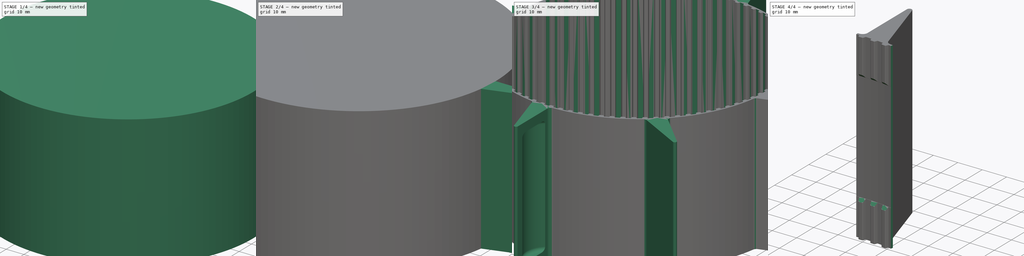
[diagram: build sequence overview — one tinted view per stage of 4, left to right]
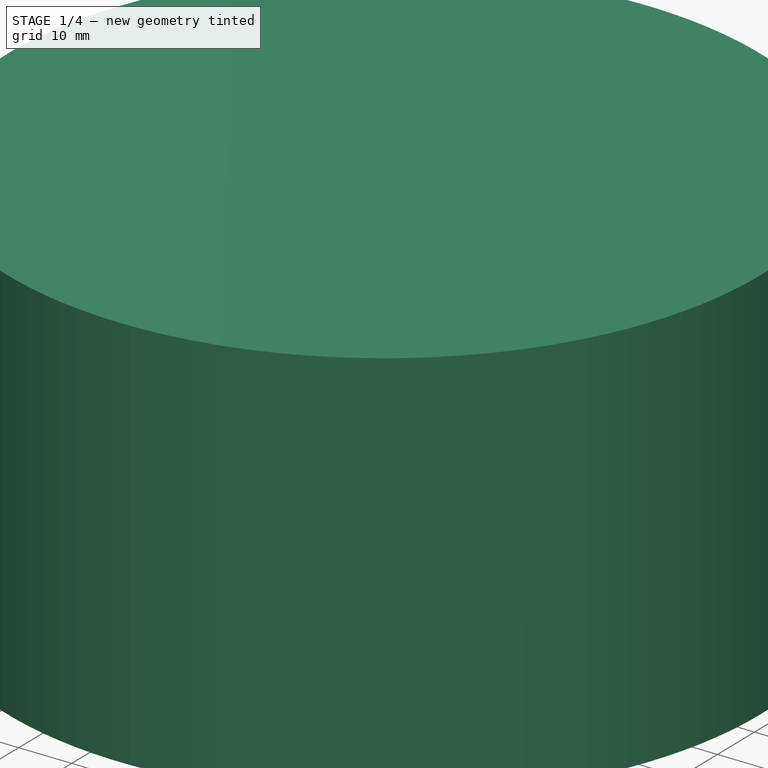
[diagram: stage 1 of 4 — iso view after this stage's code; geometry added in this stage tinted green]
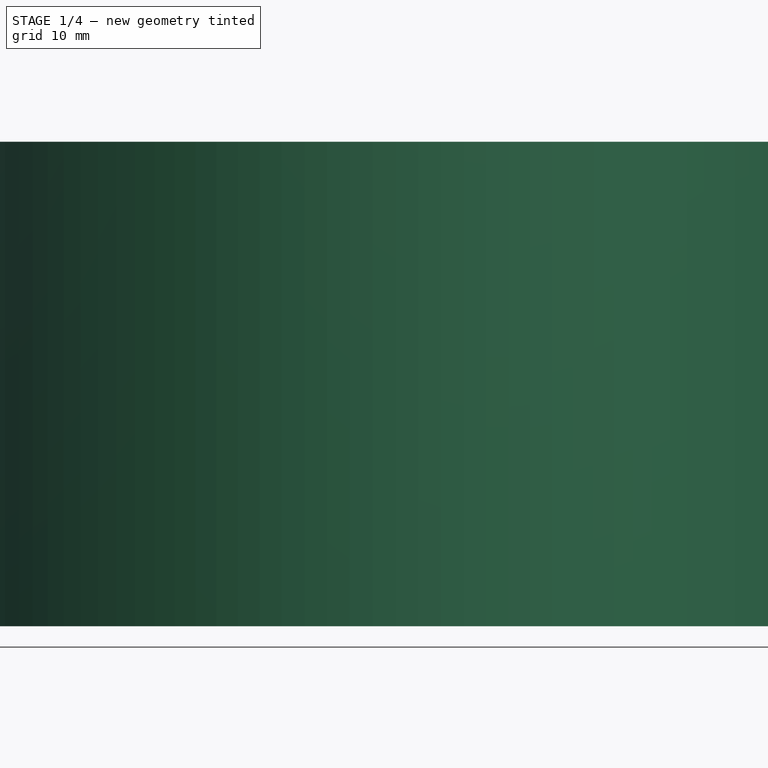
[diagram: stage 1 of 4 — front view after this stage's code; geometry added in this stage tinted green]
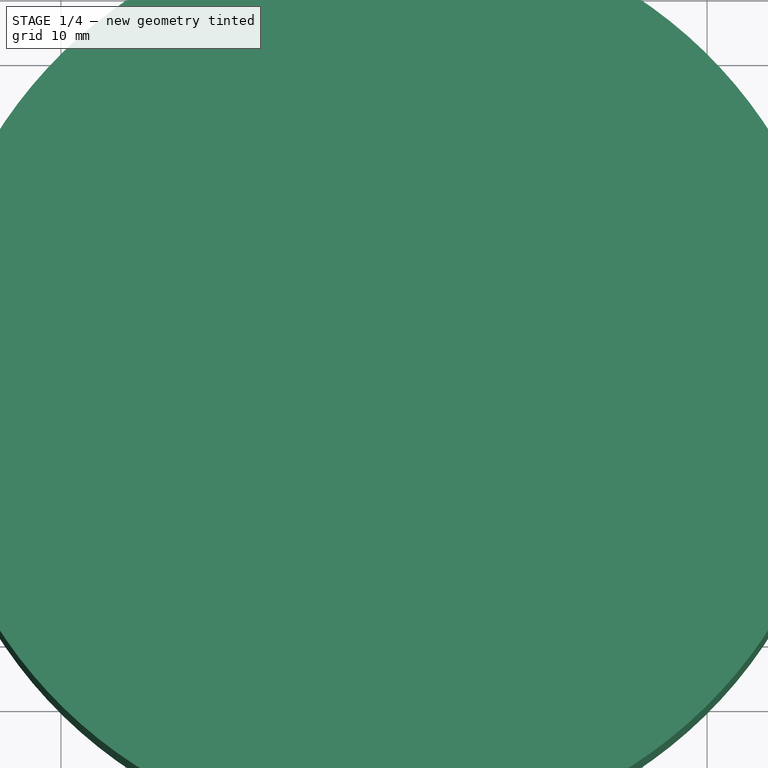
[diagram: stage 1 of 4 — top view after this stage's code; geometry added in this stage tinted green]
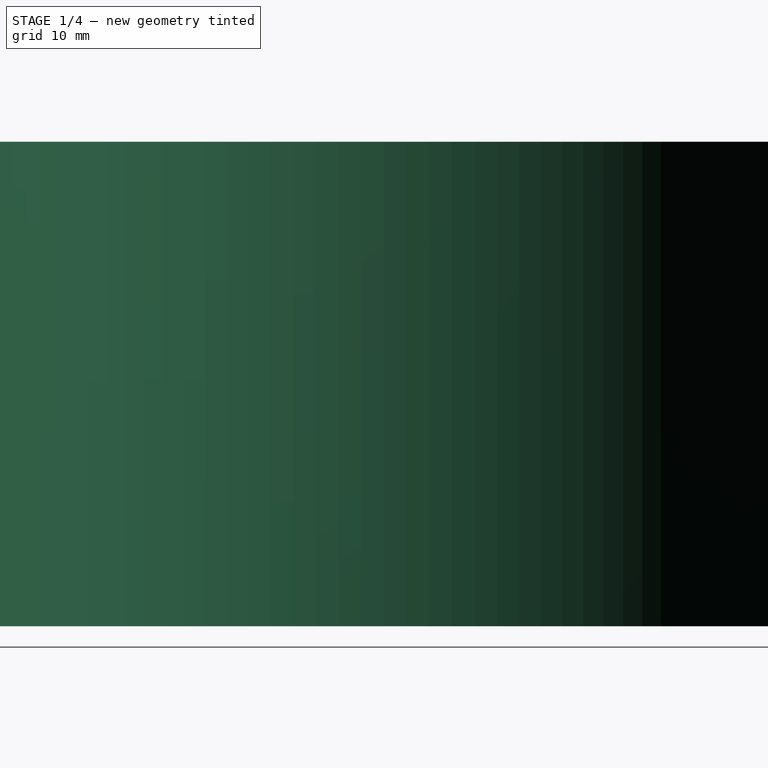
[diagram: stage 1 of 4 — right view after this stage's code; geometry added in this stage tinted green]
FCSTD DOCUMENT  (FreeCAD 2023.131R26244 +5365 (Git))
Label: ball-elevator
License: Creative Commons Attribution-NoDerivatives
LicenseURL: http://creativecommons.org/licenses/by-nd/4.0/
objects: Sketcher::SketchObject×8, PartDesign::Body×4, PartDesign::Pad×3, PartDesign::Pocket×3, PartDesign::Fillet×3, PartDesign::PolarPattern×2, App::DocumentObjectGroup×1, PartDesign::SubShapeBinder×1, PartDesign::Boolean×1, PartDesign::Groove×1, PartDesign::FeatureBase×1
note: 61 computed .brp shape members not serialized (recipe doc carries the construction recipe); baked Part::Feature solids carry a one-line shape summary decoded from their .brp

FEATURE [Sketcher::SketchObject] Sketch
  ArcFitTolerance = 1e-06
  AttachmentSupport = -> [XY_Plane]
  ExternalBSplineMaxDegree = 5
  ExternalBSplineTolerance = 0.0001
  FullyConstrained = true
  InternalTolerance = 1e-06
  InvalidShape = false
  MakeInternals = true
  MapMode = 5
  Support = -> [XY_Plane]
  TreeRank = 11
  ValidateShape = true
  sketch-geometry (6):
    g0: Circle [constr] CenterX=-3.18715e-11 CenterY=1.15965e-11 CenterZ=0 NormalX=0 NormalY=0 NormalZ=1 AngleXU=0 Radius=20.3
    g1: Circle [constr] CenterX=3.15927e-11 CenterY=150 CenterZ=0 NormalX=0 NormalY=0 NormalZ=1 AngleXU=0 Radius=20.3
    g2: LineSegment StartX=-20.3 StartY=1.3805e-06 StartZ=0 EndX=-20.3 EndY=150 EndZ=0
    g3: LineSegment StartX=20.3 StartY=150 StartZ=0 EndX=20.3 EndY=-5.31998e-10 EndZ=0
    g4: ArcOfCircle CenterX=3.15927e-11 CenterY=150 CenterZ=0 NormalX=0 NormalY=0 NormalZ=1 AngleXU=0 Radius=20.3 StartAngle=-9.96e-12 EndAngle=3.14159
    g5: ArcOfCircle CenterX=-3.18715e-11 CenterY=1.15965e-11 CenterZ=0 NormalX=0 NormalY=0 NormalZ=1 AngleXU=0 Radius=20.3 StartAngle=3.14159 EndAngle=6.28319
  constraints (14):
    c: Coincident(g0,g-1)
    c: PointOnObject(g1,g-2)
    c: Equal(g1,g0)
    c: Diameter(g1) = 40.6
    c: PointOnObject(g2,g0)
    c: PointOnObject(g2,g1)
    c: Vertical(g2)
    c: Coincident(g4,g1)
    c: Coincident(g5,g0)
    c: Coincident(g5,g2)
    c: Tangent(g5,g3) = 1.5708
    c: Tangent(g4,g3) = 1.5708
    c: Tangent(g4,g2) = 1.5708
    c: DistanceY(g5,g4) = 150
FEATURE [PartDesign::Body] Body
  AutoGroupSolids = false
  ClaimAllChildren = false
  ExportMode = 0
  Group = -> [Sketch]
  InvalidShape = false
  Origin = -> Origin
  SingleSolid = true
  TreeRank = 10
  ValidateShape = true
  _ExportChildren = -> [Sketch]
  _GroupVersion = 1
FEATURE [Sketcher::SketchObject] Sketch002
  ArcFitTolerance = 1e-06
  AttachmentSupport = -> [XY_Plane002]
  ExternalBSplineMaxDegree = 5
  ExternalBSplineTolerance = 0.0001
  FullyConstrained = true
  InternalTolerance = 1e-06
  InvalidShape = false
  MakeInternals = true
  MapMode = 5
  Support = -> [XY_Plane002]
  TreeRank = 40
  ValidateShape = true
  sketch-geometry (2):
    g0: Circle [constr] CenterX=0 CenterY=0 CenterZ=0 NormalX=0 NormalY=0 NormalZ=1 AngleXU=0 Radius=70
    g1: Circle CenterX=0 CenterY=0 CenterZ=0 NormalX=0 NormalY=0 NormalZ=1 AngleXU=0 Radius=71
  constraints (4):
    c: Coincident(g0,g-1)
    c: Diameter(g0) = 140
    c: Coincident(g1,g0)
    c: Diameter(g1) = 142
FEATURE [PartDesign::Pad] Pad
  AddSubType = 0
  AlongSketchNormal = false
  AutoTaperInnerAngle = true
  CheckUpToFaceLimits = true
  ClaimChildren = false
  Direction = (0,0,1)
  Fit = 0
  FitJoin = 0
  InnerFit = 0
  InnerFitJoin = 0
  InvalidShape = false
  Length = 75
  Length2 = 100
  Linearize = true
  Midplane = true
  NewSolid = false
  Profile = -> Sketch002
  Refine = true
  Suppress = false
  TaperInnerAngle = 0
  TaperInnerAngleRev = 0
  TreeRank = 41
  Type = 0
  ValidateShape = true
  _ProfileBasedVersion = 1
FEATURE [Sketcher::SketchObject] Sketch007
  ArcFitTolerance = 1e-06
  AttachmentSupport = -> [XY_Plane003]
  ExternalBSplineMaxDegree = 5
  ExternalBSplineTolerance = 0.0001
  FullyConstrained = true
  InternalTolerance = 1e-06
  InvalidShape = false
  MakeInternals = true
  MapMode = 5
  Support = -> [XY_Plane003]
  TreeRank = 64
  ValidateShape = true
  sketch-geometry (5):
    g0: ArcOfCircle CenterX=-6.1e-14 CenterY=-5.748e-12 CenterZ=0 NormalX=0 NormalY=0 NormalZ=1 AngleXU=0 Radius=70.06 StartAngle=1.55178 EndAngle=1.58981
    g1: LineSegment StartX=-1.33215 StartY=70.0473 StartZ=0 EndX=-0.9 EndY=68.86 EndZ=0
    g2: LineSegment StartX=-0.9 StartY=68.86 StartZ=0 EndX=0.9 EndY=68.86 EndZ=0
    g3: LineSegment StartX=0.9 StartY=68.86 StartZ=0 EndX=1.33215 EndY=70.0473 EndZ=0
    g4: GeomPoint [constr] X=0 Y=70.06 Z=0
  constraints (13):
    c: Coincident(g0,g-1)
    c: Symmetric(g0,g0,g-2)
    c: Coincident(g1,g0)
    c: Coincident(g2,g1)
    c: Coincident(g3,g2)
    c: Coincident(g3,g0)
    c: Angle(g3,g1) = 0.698132
    c: Symmetric(g1,g2,g-2)
    c: DistanceX(g2,g2) = 1.8
    c: PointOnObject(g4,g0)
    c: PointOnObject(g4,g-2)
    c: DistanceY(g2,g4) = 1.2
    c: Diameter(g0) = 140.12
FEATURE [PartDesign::Pad] Pad002
  AddSubType = 0
  AlongSketchNormal = false
  AutoTaperInnerAngle = true
  CheckUpToFaceLimits = true
  ClaimChildren = false
  Direction = (0,0,1)
  Fit = 0
  FitJoin = 0
  InnerFit = 0
  InnerFitJoin = 0
  InvalidShape = false
  Length = 75
  Length2 = 100
  Linearize = true
  Midplane = true
  NewSolid = false
  Profile = -> Sketch007
  Refine = true
  Suppress = false
  TaperInnerAngle = 0
  TaperInnerAngleRev = 0
  TreeRank = 65
  Type = 0
  ValidateShape = true
  _ProfileBasedVersion = 1
FEATURE [PartDesign::Fillet] Fillet002
  AddSubType = 0
  Base = -> Pad002 [Edge8,Edge5]
  BaseFeature = -> Pad002
  InvalidShape = false
  NewSolid = false
  Radius = 0.4
  Refine = true
  SupportTransform = false
  Suppress = false
  TreeRank = 66
  ValidateShape = true
FEATURE [PartDesign::PolarPattern] PolarPattern001
  AddSubType = 0
  Angle = 360
  Axis = -> Sketch007 [N_Axis]
  BaseFeature = -> Fillet002
  CopyShape = false
  InvalidShape = false
  NewSolid = false
  Occurrences = 88
  OriginalSubs = -> [Pad002,Fillet002]
  Originals = -> [Pad002,Fillet002]
  ParallelTransform = true
  Refine = true
  SubTransform = true
  Suppress = false
  TreeRank = 67
  ValidateShape = true
  _Version = 3
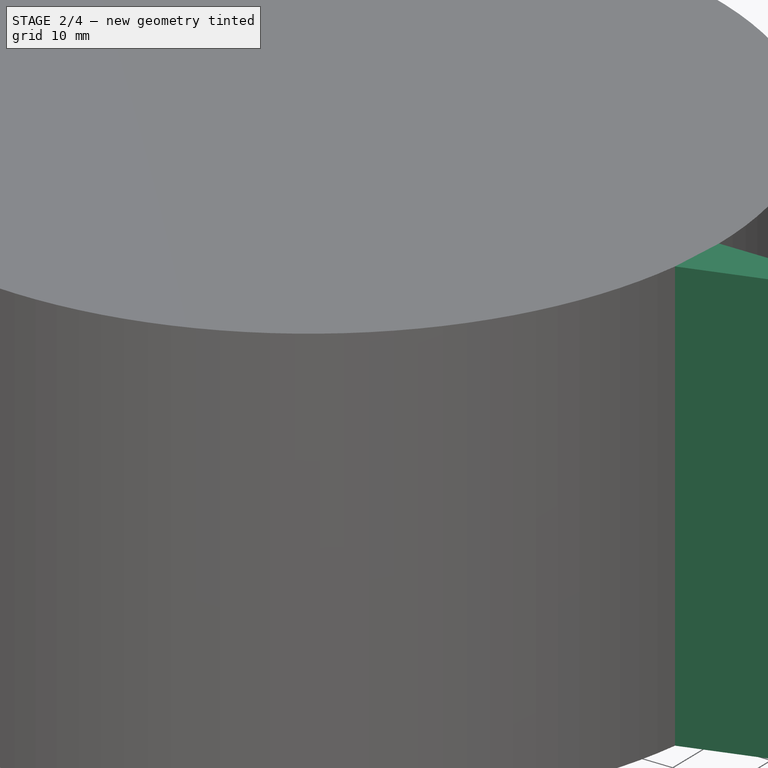
[diagram: stage 2 of 4 — iso view after this stage's code; geometry added in this stage tinted green]
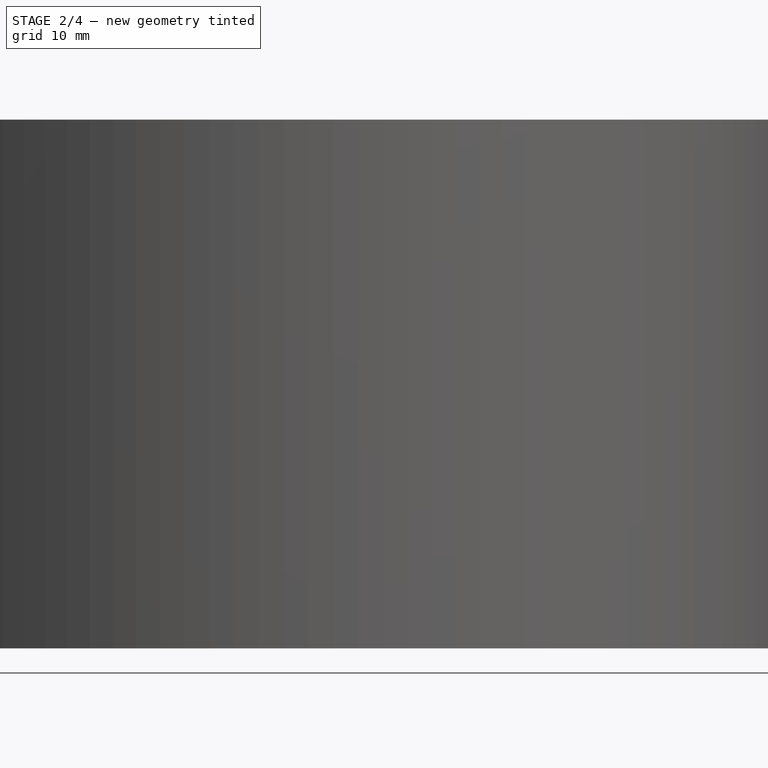
[diagram: stage 2 of 4 — front view after this stage's code; geometry added in this stage tinted green]
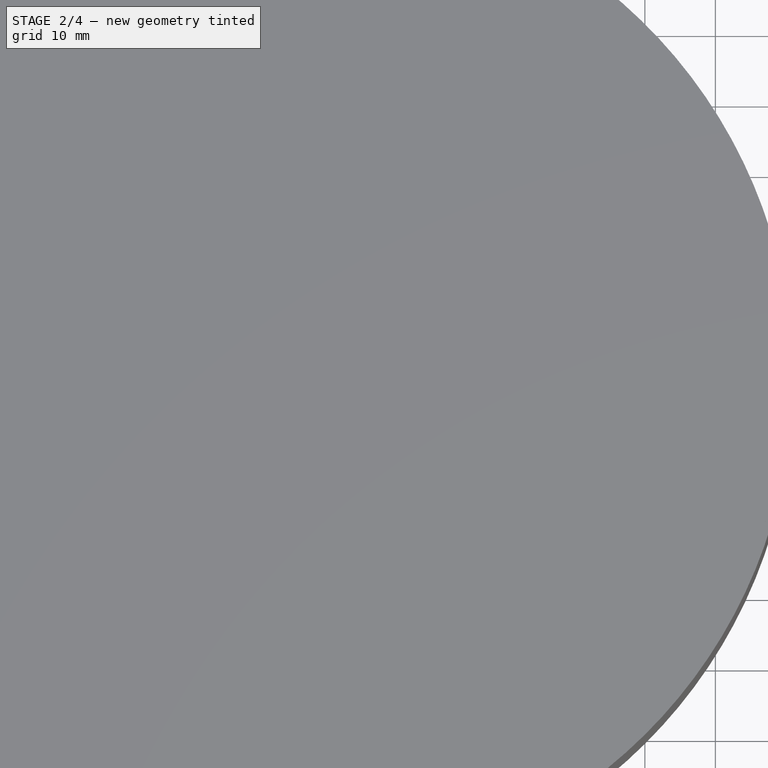
[diagram: stage 2 of 4 — top view after this stage's code; geometry added in this stage tinted green]
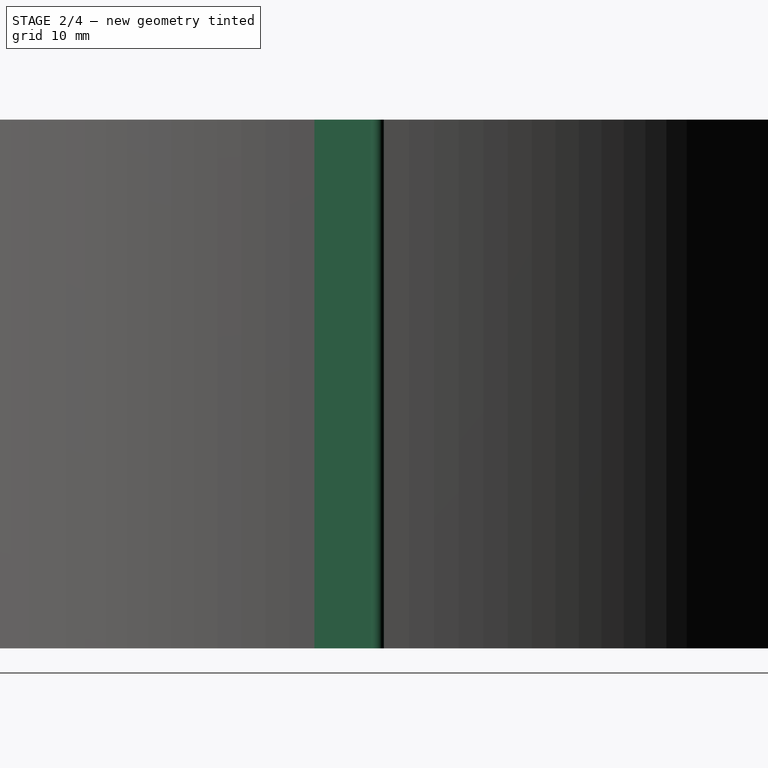
[diagram: stage 2 of 4 — right view after this stage's code; geometry added in this stage tinted green]
FEATURE [Sketcher::SketchObject] Sketch003
  ArcFitTolerance = 1e-06
  AttachmentSupport = -> [XY_Plane002]
  ExternalBSplineMaxDegree = 5
  ExternalBSplineTolerance = 0.0001
  ExternalGeometry = -> [Pad]
  FullyConstrained = true
  InternalTolerance = 1e-06
  InvalidShape = false
  MakeInternals = true
  MapMode = 5
  Support = -> [XY_Plane002]
  TreeRank = 42
  ValidateShape = true
  sketch-geometry (5):
    g0: LineSegment StartX=8.8e-15 StartY=-2.652e-13 StartZ=0 EndX=96 EndY=2.286e-13 EndZ=0
    g1: LineSegment StartX=8.8e-15 StartY=-2.652e-13 StartZ=0 EndX=70.309 EndY=-9.88129 EndZ=0
    g2: LineSegment StartX=70.309 StartY=-9.88129 StartZ=0 EndX=96.2917 EndY=-1.9565 EndZ=0
    g3: ArcOfCircle CenterX=96 CenterY=-1 CenterZ=0 NormalX=0 NormalY=0 NormalZ=1 AngleXU=0 Radius=1 StartAngle=5.00843 EndAngle=7.85398
    g4: GeomPoint [constr] X=71 Y=4.341e-13 Z=0
  constraints (13):
    c: Coincident(g0,g-3)
    c: PointOnObject(g0,g-1)
    c: Coincident(g1,g0)
    c: PointOnObject(g1,g-3)
    c: Coincident(g2,g1)
    c: Tangent(g3,g0) = 1.5708
    c: Tangent(g3,g2) = -1.5708
    c: Angle(g1,g0) = 0.139626
    c: PointOnObject(g4,g0)
    c: PointOnObject(g4,g-3)
    c: DistanceX(g4,g0) = 25
    c: Radius(g3) = 1
    c: Angle(g0,g2) = 0.29604
FEATURE [PartDesign::Pad] Pad001
  AddSubType = 0
  AlongSketchNormal = false
  AutoTaperInnerAngle = true
  BaseFeature = -> Pad
  CheckUpToFaceLimits = true
  ClaimChildren = false
  Direction = (0,0,1)
  Fit = 0
  FitJoin = 0
  InnerFit = 0
  InnerFitJoin = 0
  InvalidShape = false
  Length = 75
  Length2 = 100
  Linearize = true
  Midplane = true
  NewSolid = false
  Profile = -> Sketch003
  Refine = true
  Suppress = false
  TaperInnerAngle = 0
  TaperInnerAngleRev = 0
  TreeRank = 43
  Type = 0
  ValidateShape = true
  _ProfileBasedVersion = 1
FEATURE [Sketcher::SketchObject] Sketch004
  ArcFitTolerance = 1e-06
  AttachmentSupport = -> [XY_Plane002]
  ExternalBSplineMaxDegree = 5
  ExternalBSplineTolerance = 0.0001
  ExternalGeometry = -> [Pad001]
  FullyConstrained = true
  InternalTolerance = 1e-06
  InvalidShape = false
  MakeInternals = true
  MapMode = 5
  Support = -> [XY_Plane002]
  TreeRank = 44
  ValidateShape = true
  sketch-geometry (3):
    g0: Circle [constr] CenterX=83.5 CenterY=8 CenterZ=0 NormalX=0 NormalY=0 NormalZ=1 AngleXU=0 Radius=11.25
    g1: Circle CenterX=83.5 CenterY=8 CenterZ=0 NormalX=0 NormalY=0 NormalZ=1 AngleXU=0 Radius=12
    g2: LineSegment [constr] StartX=83.5 StartY=8 StartZ=0 EndX=83.5 EndY=1.972e-13 EndZ=0
  constraints (7):
    c: Diameter(g0) = 22.5
    c: Coincident(g1,g0)
    c: Diameter(g1) = 24
    c: Coincident(g2,g1)
    c: Vertical(g2)
    c: Symmetric(g-3,g-3,g2)
    c: DistanceY(g2,g2) = 8
FEATURE [PartDesign::Pocket] Pocket001
  AddSubType = 1
  AutoTaperInnerAngle = true
  BaseFeature = -> Pad001
  CheckUpToFaceLimits = true
  ClaimChildren = false
  Fit = 0
  FitJoin = 0
  InnerFit = 0
  InnerFitJoin = 0
  InvalidShape = false
  Length = 65
  Length2 = 100
  Linearize = true
  Midplane = true
  NewSolid = false
  Profile = -> Sketch004
  Refine = true
  Suppress = false
  TaperInnerAngle = 0
  TaperInnerAngleRev = 0
  TreeRank = 45
  Type = 0
  ValidateShape = true
  _ProfileBasedVersion = 1
  _Version = 1
FEATURE [PartDesign::Fillet] Fillet
  AddSubType = 0
  Base = -> Pocket001 [Edge18,Edge17]
  BaseFeature = -> Pocket001
  InvalidShape = false
  NewSolid = false
  Radius = 2
  Refine = true
  SupportTransform = false
  Suppress = false
  TreeRank = 46
  ValidateShape = true
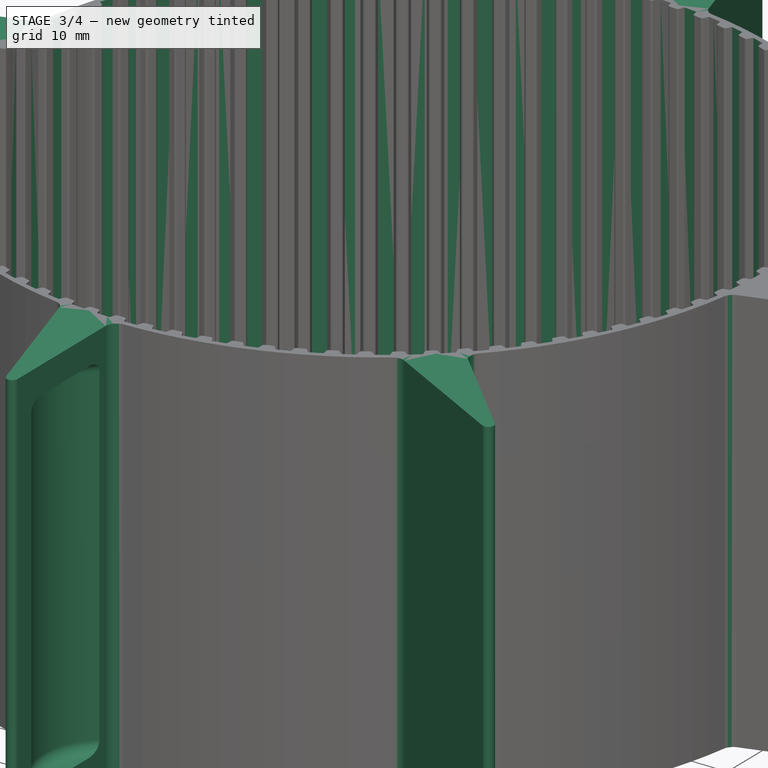
[diagram: stage 3 of 4 — iso view after this stage's code; geometry added in this stage tinted green]
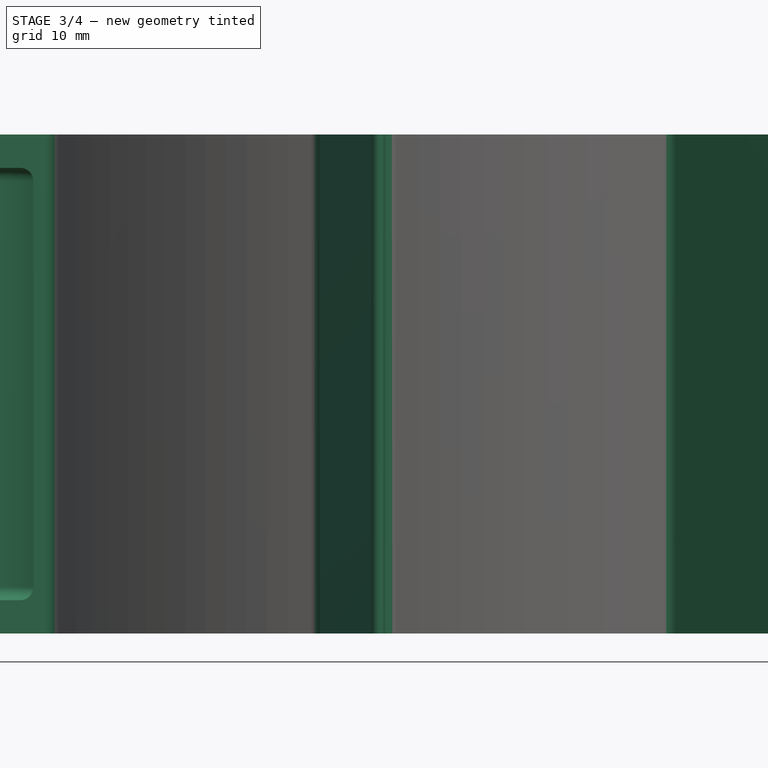
[diagram: stage 3 of 4 — front view after this stage's code; geometry added in this stage tinted green]
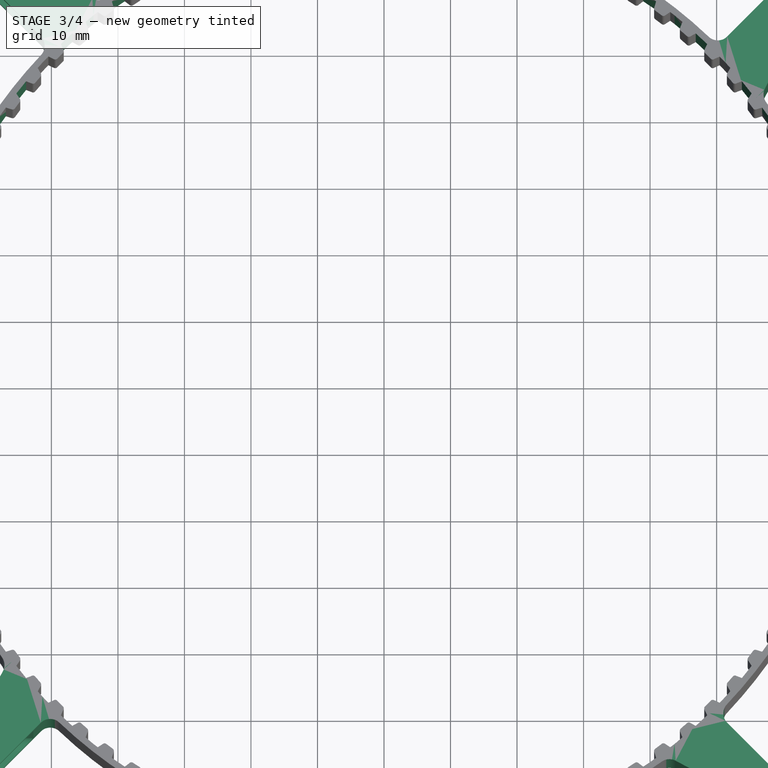
[diagram: stage 3 of 4 — top view after this stage's code; geometry added in this stage tinted green]
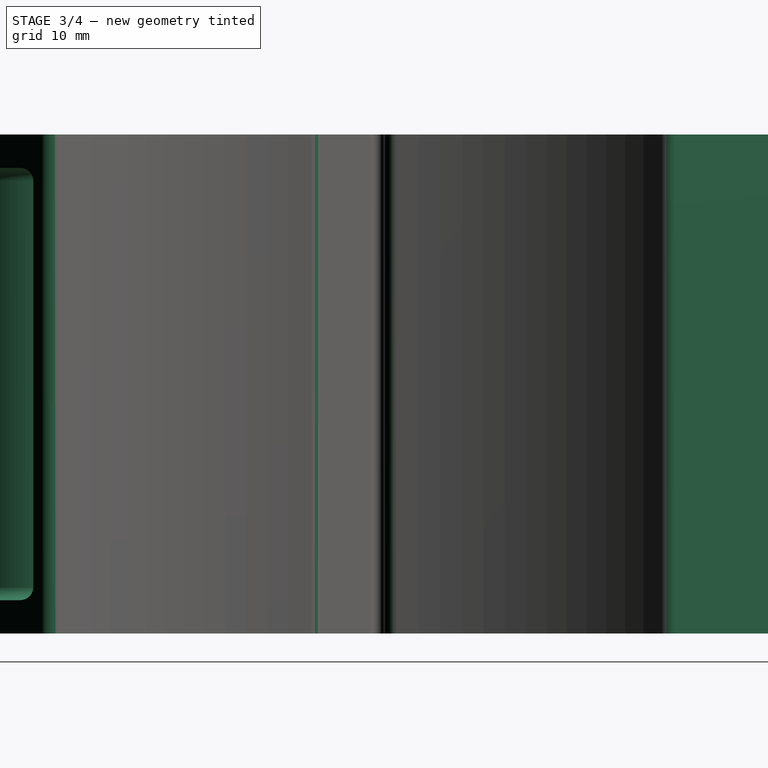
[diagram: stage 3 of 4 — right view after this stage's code; geometry added in this stage tinted green]
FEATURE [PartDesign::Fillet] Fillet001
  AddSubType = 0
  Base = -> Fillet [Edge20,Edge10]
  BaseFeature = -> Fillet
  InvalidShape = false
  NewSolid = false
  Radius = 2
  Refine = true
  SupportTransform = false
  Suppress = false
  TreeRank = 47
  ValidateShape = true
FEATURE [PartDesign::PolarPattern] PolarPattern
  AddSubType = 0
  Angle = 360
  Axis = -> Sketch003 [N_Axis]
  BaseFeature = -> Fillet001
  CopyShape = false
  InvalidShape = false
  NewSolid = false
  Occurrences = 8
  OriginalSubs = -> [Pad001,Pocket001,Fillet,Fillet001]
  Originals = -> [Pad001,Pocket001,Fillet,Fillet001]
  ParallelTransform = true
  Refine = true
  SubTransform = true
  Suppress = false
  TreeRank = 48
  ValidateShape = true
  _Version = 3
FEATURE [Sketcher::SketchObject] Sketch005
  ArcFitTolerance = 1e-06
  AttachmentSupport = -> [XY_Plane002]
  ExternalBSplineMaxDegree = 5
  ExternalBSplineTolerance = 0.0001
  FullyConstrained = true
  InternalTolerance = 1e-06
  InvalidShape = false
  MakeInternals = true
  MapMode = 5
  Support = -> [XY_Plane002]
  TreeRank = 49
  ValidateShape = true
  sketch-geometry (1):
    g0: Circle CenterX=0 CenterY=0 CenterZ=0 NormalX=0 NormalY=0 NormalZ=1 AngleXU=0 Radius=70.06
  constraints (2):
    c: Coincident(g0,g-1)
    c: Diameter(g0) = 140.12
FEATURE [PartDesign::Pocket] Pocket002
  AddSubType = 1
  AutoTaperInnerAngle = true
  BaseFeature = -> PolarPattern
  CheckUpToFaceLimits = true
  ClaimChildren = false
  Fit = 0
  FitJoin = 0
  InnerFit = 0
  InnerFitJoin = 0
  InvalidShape = false
  Length = 5
  Length2 = 100
  Linearize = true
  Midplane = true
  NewSolid = false
  Profile = -> Sketch005
  Refine = true
  Suppress = false
  TaperInnerAngle = 0
  TaperInnerAngleRev = 0
  TreeRank = 50
  Type = 1
  ValidateShape = true
  _ProfileBasedVersion = 1
  _Version = 1
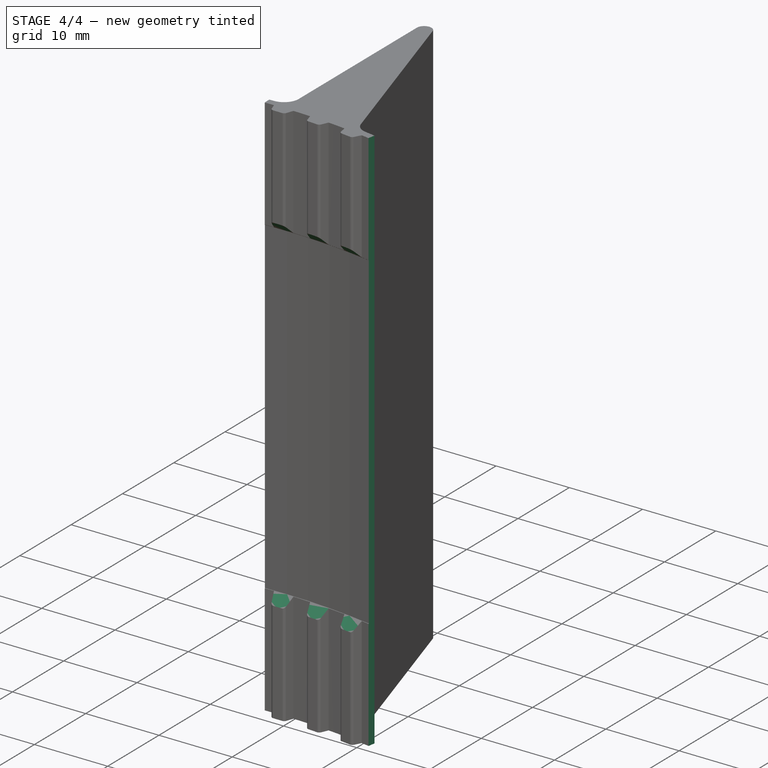
[diagram: stage 4 of 4 — iso view after this stage's code; geometry added in this stage tinted green]
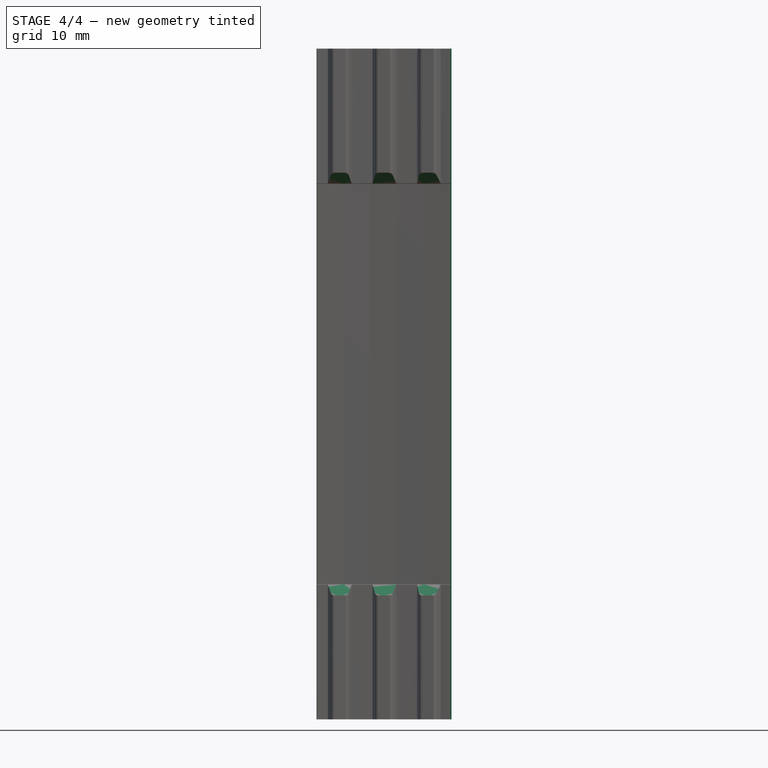
[diagram: stage 4 of 4 — front view after this stage's code; geometry added in this stage tinted green]
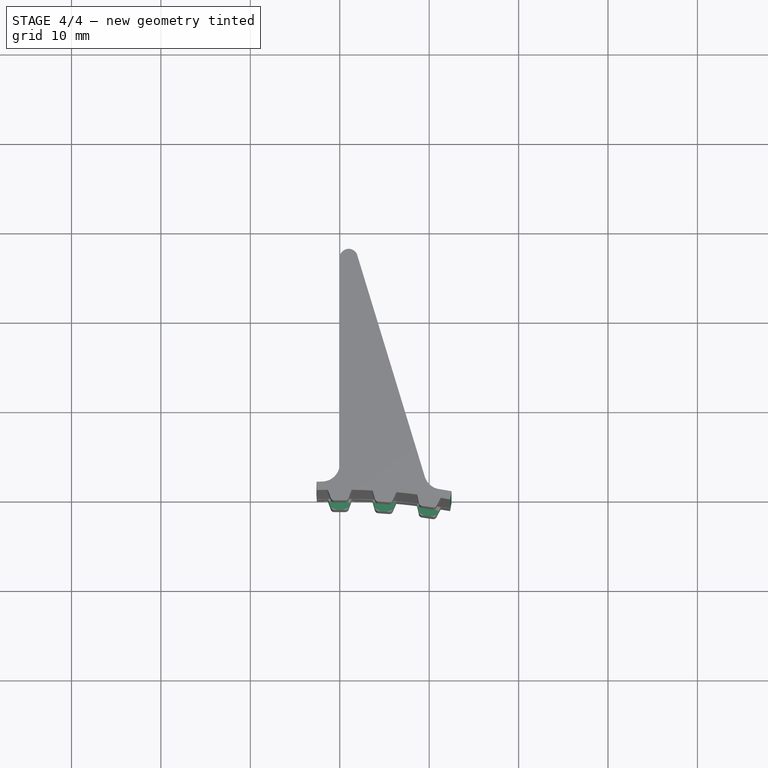
[diagram: stage 4 of 4 — top view after this stage's code; geometry added in this stage tinted green]
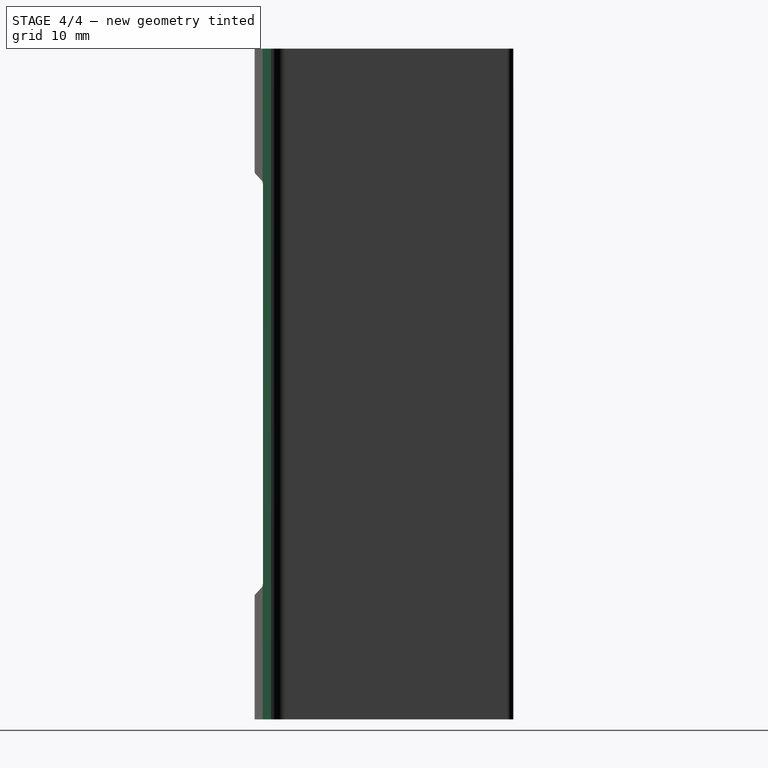
[diagram: stage 4 of 4 — right view after this stage's code; geometry added in this stage tinted green]
FEATURE [PartDesign::Body] Body003  label="88teeetBelt"
  AutoGroupSolids = false
  ClaimAllChildren = false
  ExportMode = 0
  Group = -> [Sketch007,Pad002,Fillet002,PolarPattern001]
  InvalidShape = false
  Origin = -> Origin003
  SingleSolid = true
  Tip = -> PolarPattern001
  TreeRank = 63
  ValidateShape = true
  _ExportChildren = -> [Pad002,Fillet002,PolarPattern001]
  _GroupVersion = 1
FEATURE [App::DocumentObjectGroup] Group  label="Construction"
  ClaimAllChildren = true
  ExportMode = 1
  Group = -> [Body003]
  TreeRank = 28
  _GroupVersion = 1
FEATURE [PartDesign::SubShapeBinder] Reference  label="Reference(88teeetBelt)"
  BindCopyOnChange = 0
  BindMode = 0
  ClaimChildren = false
  Context = -> Body002 [Reference.]
  EdgeTolerance = 1e-06
  FillStyle = 0
  Fuse = false
  InvalidShape = false
  MakeFace = true
  MergeEdges = true
  OffsetFill = false
  OffsetIntersection = false
  OffsetJoinType = 0
  OffsetOpenResult = false
  Outline = false
  PartialLoad = false
  Relative = true
  SplitEdges = false
  Support = -> [Body003]
  TightBound = false
  TreeRank = 69
  ValidateShape = true
  _Version = 8
FEATURE [PartDesign::Boolean] Boolean
  BaseFeature = -> Pocket002
  ClaimAllChildren = false
  ExportMode = 0
  Group = -> [Reference]
  InvalidShape = false
  NewSolid = false
  Refine = true
  Suppress = false
  TreeRank = 68
  Type = 0
  ValidateShape = true
  _ExportChildren = -> [Reference]
  _GroupVersion = 1
FEATURE [Sketcher::SketchObject] Sketch008
  ArcFitTolerance = 1e-06
  AttachmentSupport = -> [XY_Plane004]
  ExternalBSplineMaxDegree = 5
  ExternalBSplineTolerance = 0.0001
  FullyConstrained = false
  InternalTolerance = 1e-06
  InvalidShape = false
  MakeInternals = true
  MapMode = 5
  Support = -> [XY_Plane004]
  TreeRank = 81
  ValidateShape = true
  sketch-geometry (3):
    g0: LineSegment StartX=0 StartY=0 StartZ=0 EndX=-4.19531 EndY=114.33 EndZ=0
    g1: LineSegment StartX=0 StartY=0 StartZ=0 EndX=20.1423 EndY=112.62 EndZ=0
    g2: ArcOfCircle CenterX=0 CenterY=0 CenterZ=0 NormalX=0 NormalY=0 NormalZ=1 AngleXU=0 Radius=114.407 StartAngle=1.60747 EndAngle=7.677
  constraints (5):
    c: Coincident(g0,g-1)
    c: Coincident(g1,g0)
    c: Coincident(g2,g0)
    c: Coincident(g2,g0)
    c: Coincident(g2,g1)
FEATURE [Sketcher::SketchObject] Sketch009
  ArcFitTolerance = 1e-06
  AttachmentSupport = -> [XZ_Plane002]
  ExternalBSplineMaxDegree = 5
  ExternalBSplineTolerance = 0.0001
  FullyConstrained = true
  InternalTolerance = 1e-06
  InvalidShape = false
  MakeInternals = true
  MapMode = 5
  Placement = pos=(0,0,0) rot=(1,0,0;1.5708rad)
  Support = -> [XZ_Plane002]
  TreeRank = 83
  ValidateShape = true
  sketch-geometry (6):
    g0: LineSegment StartX=8.2162e-12 StartY=-27.5 StartZ=0 EndX=65 EndY=-27.5 EndZ=0
    g1: LineSegment StartX=65 StartY=-27.5 StartZ=0 EndX=70.1 EndY=-22.4 EndZ=0
    g2: LineSegment StartX=70.1 StartY=-22.4 StartZ=0 EndX=70.1 EndY=22.4 EndZ=0
    g3: LineSegment StartX=70.1 StartY=22.4 StartZ=0 EndX=65 EndY=27.5 EndZ=0
    g4: LineSegment StartX=65 StartY=27.5 StartZ=0 EndX=-6.93063e-11 EndY=27.5 EndZ=0
    g5: LineSegment StartX=-6.93008e-11 StartY=27.5 StartZ=0 EndX=8.2162e-12 EndY=-27.5 EndZ=0
  constraints (17):
    c: PointOnObject(g0,g-2)
    c: Horizontal(g0)
    c: Coincident(g1,g0)
    c: Coincident(g2,g1)
    c: Vertical(g2)
    c: Coincident(g3,g2)
    c: Coincident(g4,g3)
    c: Horizontal(g4)
    c: Coincident(g5,g4)
    c: Coincident(g5,g0)
    c: Symmetric(g4,g0,g-1)
    c: Equal(g0,g4)
    c: Angle(g-1,g1) = 0.785398
    c: Equal(g3,g1)
    c: DistanceY(g5,g5) = 55
    c: DistanceX(g0,g0) = 65
    c: DistanceX(g-1,g1) = 70.1
FEATURE [PartDesign::Groove] Groove
  AddSubType = 1
  Angle = 360
  Axis = (-3e-16,3e-16,1)
  Base = (0,0,0)
  BaseFeature = -> Boolean
  ClaimChildren = false
  Fit = 0
  FitJoin = 0
  InnerFit = 0
  InnerFitJoin = 0
  InvalidShape = false
  Linearize = true
  NewSolid = false
  Profile = -> Sketch009
  ReferenceAxis = -> Z_Axis002
  Refine = true
  Suppress = false
  TreeRank = 84
  ValidateShape = true
  _ProfileBasedVersion = 1
FEATURE [PartDesign::Body] Body002  label="BallBelt"
  AutoGroupSolids = false
  ClaimAllChildren = false
  ExportMode = 0
  Group = -> [Sketch002,Pad,Sketch003,Pad001,Sketch004,Pocket001,Fillet,Fillet001,PolarPattern,Sketch005,Pocket002,Boolean,Sketch009,Groove]
  InvalidShape = false
  Origin = -> Origin002
  SingleSolid = true
  Tip = -> Groove
  TreeRank = 39
  ValidateShape = true
  _ExportChildren = -> [Pad,Pad001,Pocket001,Fillet,Fillet001,PolarPattern,Pocket002,Boolean,Groove]
  _GroupVersion = 1
FEATURE [PartDesign::FeatureBase] Clone
  BaseFeature = -> Body002
  InvalidShape = false
  NewSolid = false
  Suppress = false
  TreeRank = 79
  ValidateShape = true
FEATURE [PartDesign::Pocket] Pocket003
  AddSubType = 1
  AutoTaperInnerAngle = true
  BaseFeature = -> Clone
  CheckUpToFaceLimits = true
  ClaimChildren = false
  Fit = 0
  FitJoin = 0
  InnerFit = 0
  InnerFitJoin = 0
  InvalidShape = false
  Length = 5
  Length2 = 100
  Linearize = true
  Midplane = true
  NewSolid = false
  Profile = -> Sketch008
  Refine = true
  Suppress = false
  TaperInnerAngle = 0
  TaperInnerAngleRev = 0
  TreeRank = 82
  Type = 1
  ValidateShape = true
  _ProfileBasedVersion = 1
  _Version = 1
FEATURE [PartDesign::Body] Body004  label="PortionBeltTest"
  AutoGroupSolids = false
  BaseFeature = -> Body002
  ClaimAllChildren = false
  ExportMode = 0
  Group = -> [Clone,Sketch008,Pocket003]
  InvalidShape = false
  Origin = -> Origin004
  SingleSolid = true
  Tip = -> Pocket003
  TreeRank = 80
  ValidateShape = true
  _ExportChildren = -> [Clone,Pocket003]
  _GroupVersion = 1
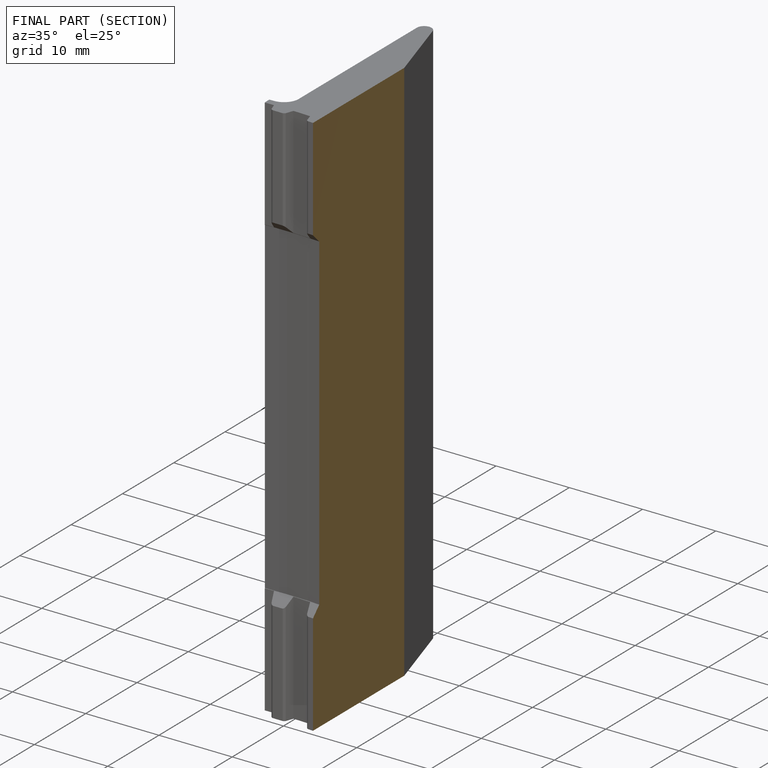
[diagram: finished part — half-section view (interior)]
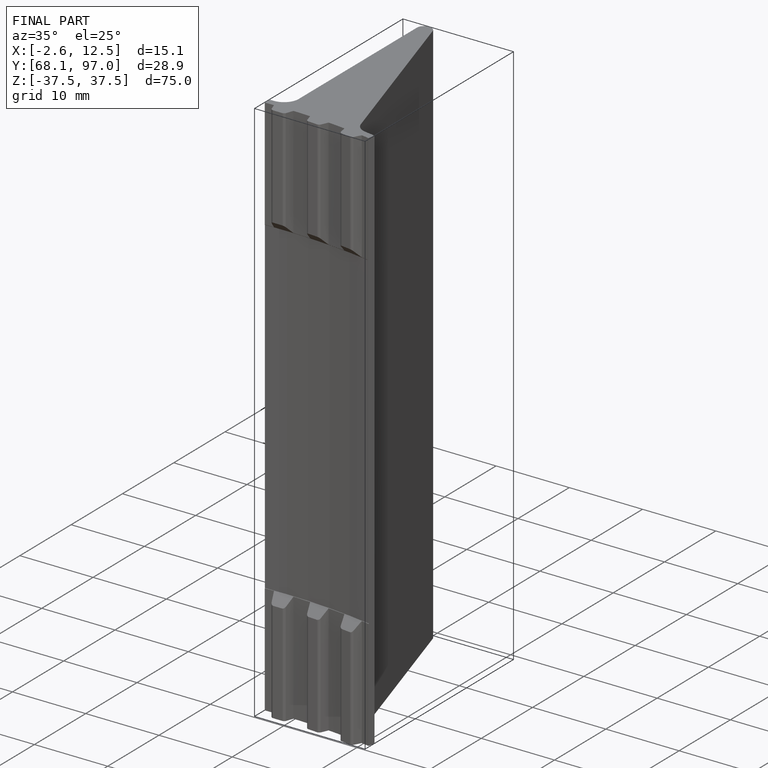
[diagram: finished part — iso view with bounding-box wireframe]
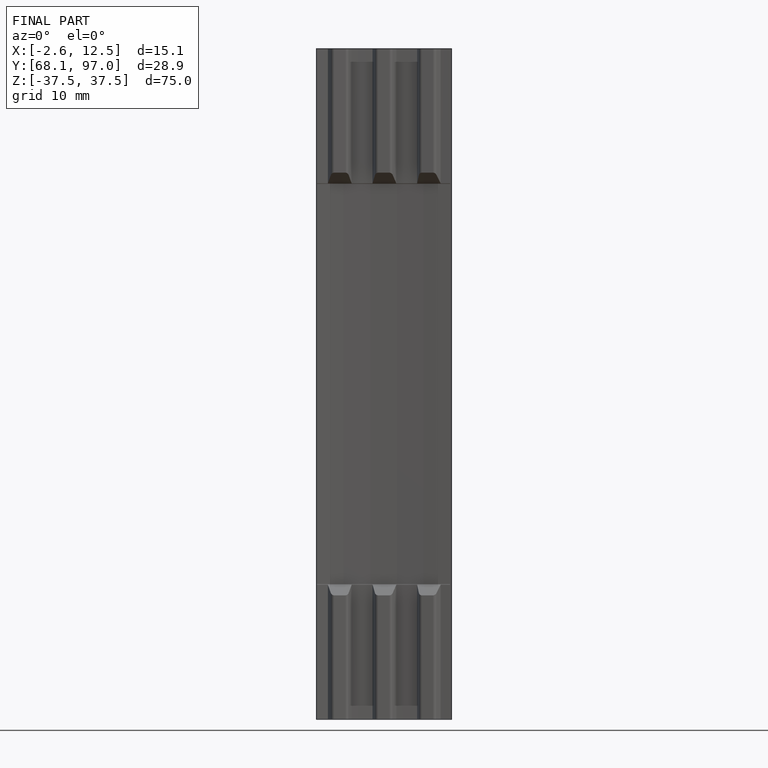
[diagram: finished part — front view with bounding-box wireframe]
